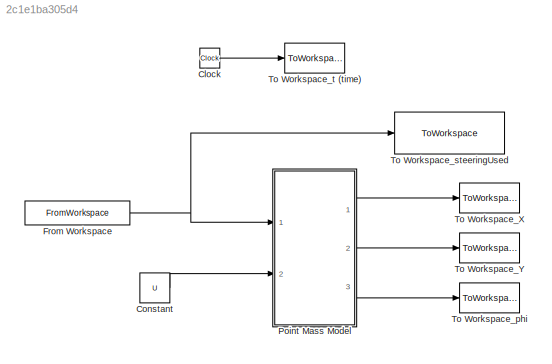
MODEL slx_2c1e1ba305d4
KIND model
CONFIG AbsTol = auto
CONFIG EnableMultiTasking = on
CONFIG FixedStep = deltaT
CONFIG MaxStep = deltaT
CONFIG MinStep = auto
CONFIG RelTol = 1e-3
CONFIG SampleTimeConstraint = Unconstrained
CONFIG SolverName = ode4
CONFIG StartTime = startTime
CONFIG StopTime = endTime
BLOCK [Clock] Clock
BLOCK [Constant] Constant
  SampleTime = .01
  Value = U
BLOCK [FromWorkspace] From Workspace
  OutDataTypeStr = double
  OutputAfterFinalValue = Holding final value
  SampleTime = .01
  VariableName = steeringAndTimeInputs
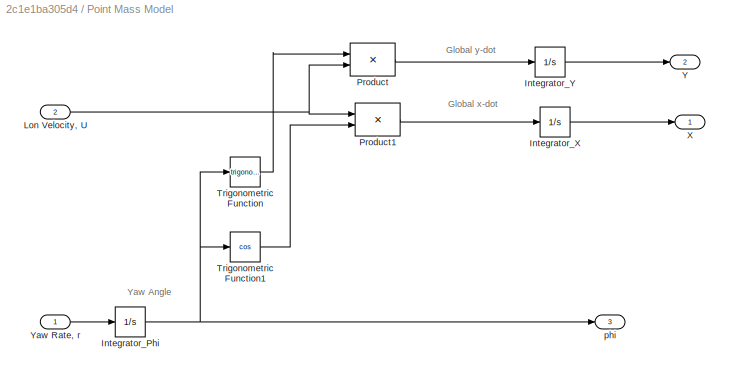
BLOCK [SubSystem] Point Mass Model
  Ports = [2, 3]
BLOCK [Integrator] Point Mass Model/Integrator_Phi
  InitialCondition = initialStates(3)
  Ports = [1, 1]
BLOCK [Integrator] Point Mass Model/Integrator_X
  InitialCondition = initialStates(2)
  Ports = [1, 1]
BLOCK [Integrator] Point Mass Model/Integrator_Y
  InitialCondition = initialStates(1)
  Ports = [1, 1]
BLOCK [Inport] Point Mass Model/Lon Velocity, U
  Port = 2
BLOCK [Product] Point Mass Model/Product
  OutDataTypeStr = Inherit: Same as first input
  Ports = [2, 1]
  SaturateOnIntegerOverflow = on
BLOCK [Product] Point Mass Model/Product1
  OutDataTypeStr = Inherit: Same as first input
  Ports = [2, 1]
  SaturateOnIntegerOverflow = on
BLOCK [Trigonometry] Point Mass Model/Trigonometric Function
  Ports = [1, 1]
BLOCK [Trigonometry] Point Mass Model/Trigonometric Function1
  Operator = cos
  Ports = [1, 1]
BLOCK [Outport] Point Mass Model/X
BLOCK [Outport] Point Mass Model/Y
  Port = 2
BLOCK [Inport] Point Mass Model/Yaw Rate, r
BLOCK [Outport] Point Mass Model/phi
  Port = 3
BLOCK [ToWorkspace] To Workspace_X
  MaxDataPoints = inf
  Ports = [1]
  SampleTime = .01
  VariableName = X
BLOCK [ToWorkspace] To Workspace_Y
  MaxDataPoints = inf
  Ports = [1]
  SampleTime = .01
  VariableName = Y
BLOCK [ToWorkspace] To Workspace_phi
  MaxDataPoints = inf
  Ports = [1]
  SampleTime = .01
  VariableName = phi
BLOCK [ToWorkspace] To Workspace_steeringUsed
  MaxDataPoints = inf
  Ports = [1]
  SampleTime = .01
  VariableName = steeringUsed
BLOCK [ToWorkspace] To Workspace_t (time)
  MaxDataPoints = inf
  Ports = [1]
  SampleTime = .01
  VariableName = simTime
ANNOTATION Point Mass Model: Global x-dot
ANNOTATION Point Mass Model: Global y-dot
ANNOTATION Point Mass Model: Yaw Angle
LINE Clock:1 -> To Workspace_t (time):1
LINE Constant:1 -> Point Mass Model:2
NET From Workspace:1 -> Point Mass Model:1, To Workspace_steeringUsed:1
NET Point Mass Model/Integrator_Phi:1 -> Point Mass Model/Trigonometric Function1:1, Point Mass Model/Trigonometric Function:1, Point Mass Model/phi:1
LINE Point Mass Model/Integrator_X:1 -> Point Mass Model/X:1
LINE Point Mass Model/Integrator_Y:1 -> Point Mass Model/Y:1
NET Point Mass Model/Lon Velocity, U:1 -> Point Mass Model/Product1:1, Point Mass Model/Product:2
LINE Point Mass Model/Product1:1 -> Point Mass Model/Integrator_X:1
LINE Point Mass Model/Product:1 -> Point Mass Model/Integrator_Y:1
LINE Point Mass Model/Trigonometric Function1:1 -> Point Mass Model/Product1:2
LINE Point Mass Model/Trigonometric Function:1 -> Point Mass Model/Product:1
LINE Point Mass Model/Yaw Rate, r:1 -> Point Mass Model/Integrator_Phi:1
LINE Point Mass Model:1 -> To Workspace_X:1
LINE Point Mass Model:2 -> To Workspace_Y:1
LINE Point Mass Model:3 -> To Workspace_phi:1
note: NET lines group one-source signal fan-out (src -> all destinations, sorted); 1:1 wires keep LINE
